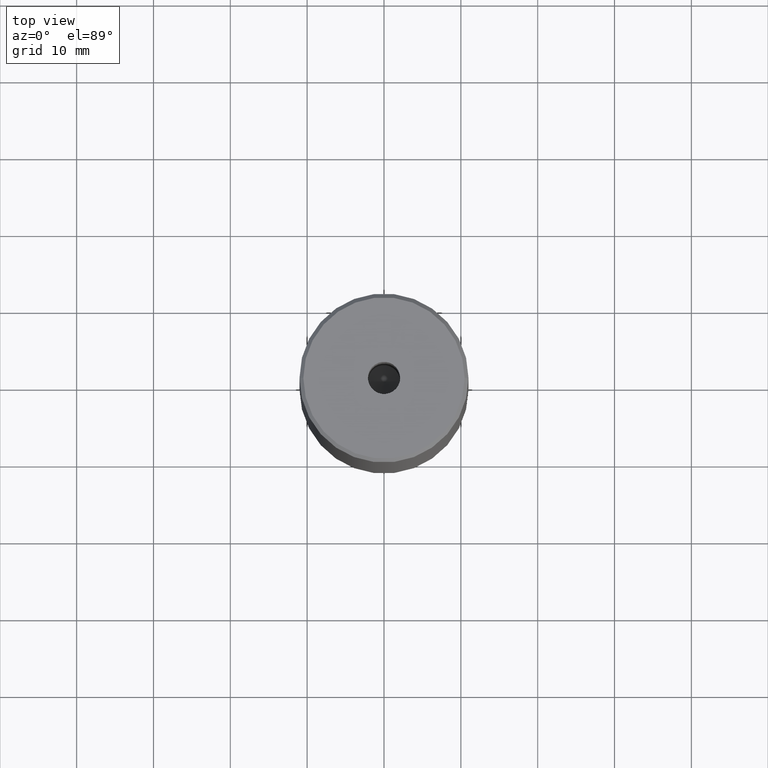
[diagram: clean part render]
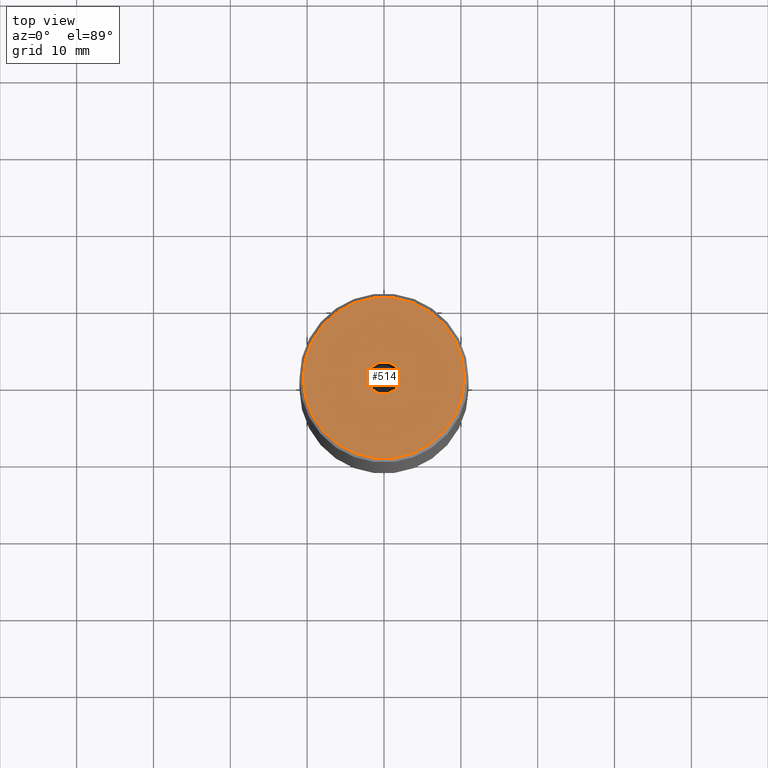
[diagram: same view with one face highlighted and labeled with its STEP entity id]
A machine part, top view. The second image highlights one B-rep face of the part: STEP entity #514.
In plain terms, the highlighted planar face has unit normal (0, -0, 1).
Its self-contained STEP definition (entity closure, byte-faithful):
#19 = PLANE ( 'NONE',  #336 ) ;
#24 = CIRCLE ( 'NONE', #475, 10.49999999999999467 ) ;
#37 = CIRCLE ( 'NONE', #368, 10.49999999999999467 ) ;
#60 = VERTEX_POINT ( 'NONE', #174 ) ;
#72 = EDGE_LOOP ( 'NONE', ( #433, #359 ) ) ;
#117 = DIRECTION ( 'NONE',  ( 0.000000000000000000, -0.000000000000000000, 1.000000000000000000 ) ) ;
#148 = VERTEX_POINT ( 'NONE', #327 ) ;
#159 = EDGE_CURVE ( 'NONE', #60, #318, #196, .T. ) ;
#174 = CARTESIAN_POINT ( 'NONE',  ( -2.099999999999998757, 2.571758278209440478E-16, -1.990051048614449116E-16 ) ) ;
#194 = CARTESIAN_POINT ( 'NONE',  ( 0.000000000000000000, 0.000000000000000000, 0.000000000000000000 ) ) ;
#196 = CIRCLE ( 'NONE', #559, 2.099999999999998757 ) ;
#211 = CARTESIAN_POINT ( 'NONE',  ( 0.000000000000000000, 0.000000000000000000, -1.990051048614449116E-16 ) ) ;
#228 = EDGE_LOOP ( 'NONE', ( #387, #294 ) ) ;
#265 = DIRECTION ( 'NONE',  ( -0.000000000000000000, -0.000000000000000000, 1.000000000000000000 ) ) ;
#279 = EDGE_CURVE ( 'NONE', #148, #286, #24, .T. ) ;
#286 = VERTEX_POINT ( 'NONE', #526 ) ;
#287 = FACE_BOUND ( 'NONE', #228, .T. ) ;
#294 = ORIENTED_EDGE ( 'NONE', *, *, #159, .F. ) ;
#298 = DIRECTION ( 'NONE',  ( -0.000000000000000000, -0.000000000000000000, 1.000000000000000000 ) ) ;
#316 = DIRECTION ( 'NONE',  ( 1.000000000000000000, 0.000000000000000000, 0.000000000000000000 ) ) ;
#318 = VERTEX_POINT ( 'NONE', #354 ) ;
#327 = CARTESIAN_POINT ( 'NONE',  ( 10.49999999999999467, 1.316495309083404420E-15, 0.000000000000000000 ) ) ;
#336 = AXIS2_PLACEMENT_3D ( 'NONE', #194, #117, #477 ) ;
#343 = FACE_OUTER_BOUND ( 'NONE', #72, .T. ) ;
#352 = DIRECTION ( 'NONE',  ( 1.000000000000000000, 0.000000000000000000, 0.000000000000000000 ) ) ;
#354 = CARTESIAN_POINT ( 'NONE',  ( 2.099999999999998757, 0.000000000000000000, -1.990051048614449116E-16 ) ) ;
#357 = CIRCLE ( 'NONE', #445, 2.099999999999998757 ) ;
#359 = ORIENTED_EDGE ( 'NONE', *, *, #279, .T. ) ;
#368 = AXIS2_PLACEMENT_3D ( 'NONE', #573, #530, #443 ) ;
#387 = ORIENTED_EDGE ( 'NONE', *, *, #421, .F. ) ;
#397 = DIRECTION ( 'NONE',  ( -0.000000000000000000, -0.000000000000000000, 1.000000000000000000 ) ) ;
#414 = EDGE_CURVE ( 'NONE', #286, #148, #37, .T. ) ;
#421 = EDGE_CURVE ( 'NONE', #318, #60, #357, .T. ) ;
#433 = ORIENTED_EDGE ( 'NONE', *, *, #414, .T. ) ;
#443 = DIRECTION ( 'NONE',  ( 1.000000000000000000, 0.000000000000000000, 0.000000000000000000 ) ) ;
#445 = AXIS2_PLACEMENT_3D ( 'NONE', #211, #397, #352 ) ;
#450 = CARTESIAN_POINT ( 'NONE',  ( 0.000000000000000000, 0.000000000000000000, -1.990051048614449116E-16 ) ) ;
#475 = AXIS2_PLACEMENT_3D ( 'NONE', #522, #298, #479 ) ;
#477 = DIRECTION ( 'NONE',  ( 1.000000000000000000, 0.000000000000000000, 0.000000000000000000 ) ) ;
#479 = DIRECTION ( 'NONE',  ( 1.000000000000000000, 0.000000000000000000, 0.000000000000000000 ) ) ;
#514 = ADVANCED_FACE ( 'NONE', ( #287, #343 ), #19, .T. ) ;
#522 = CARTESIAN_POINT ( 'NONE',  ( 0.000000000000000000, 0.000000000000000000, 0.000000000000000000 ) ) ;
#526 = CARTESIAN_POINT ( 'NONE',  ( -10.49999999999999467, 0.000000000000000000, 0.000000000000000000 ) ) ;
#530 = DIRECTION ( 'NONE',  ( -0.000000000000000000, -0.000000000000000000, 1.000000000000000000 ) ) ;
#559 = AXIS2_PLACEMENT_3D ( 'NONE', #450, #265, #316 ) ;
#573 = CARTESIAN_POINT ( 'NONE',  ( 0.000000000000000000, 0.000000000000000000, 0.000000000000000000 ) ) ;